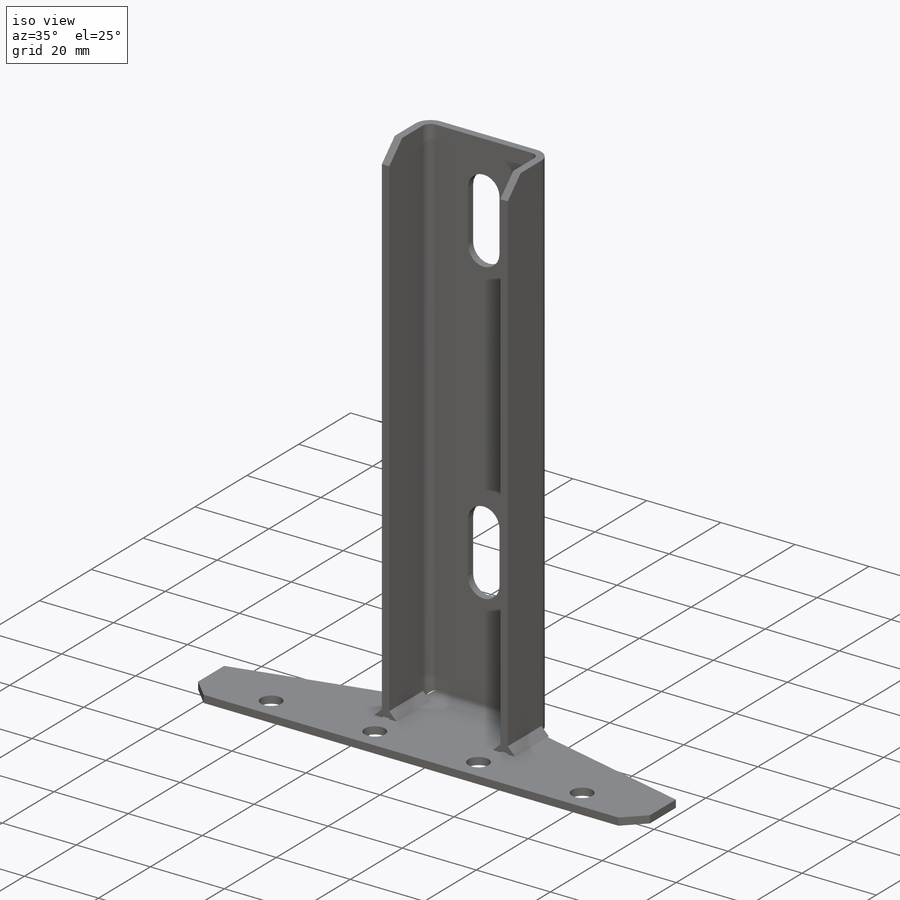
[diagram: iso view]
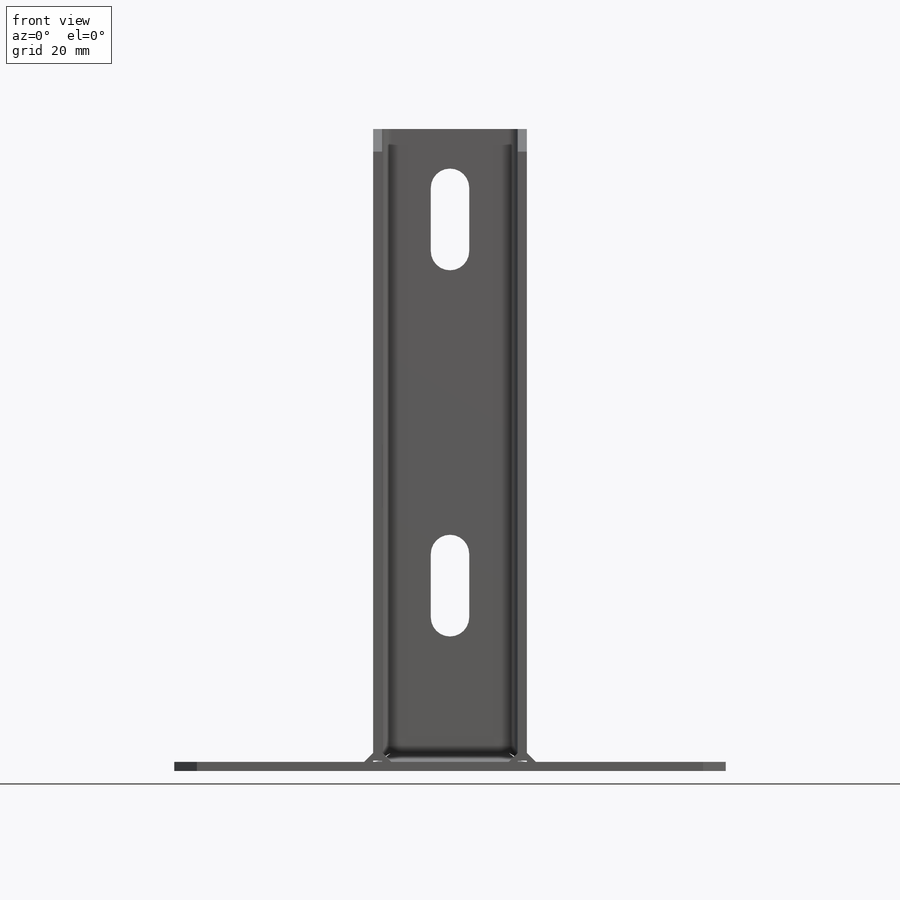
[diagram: front view]
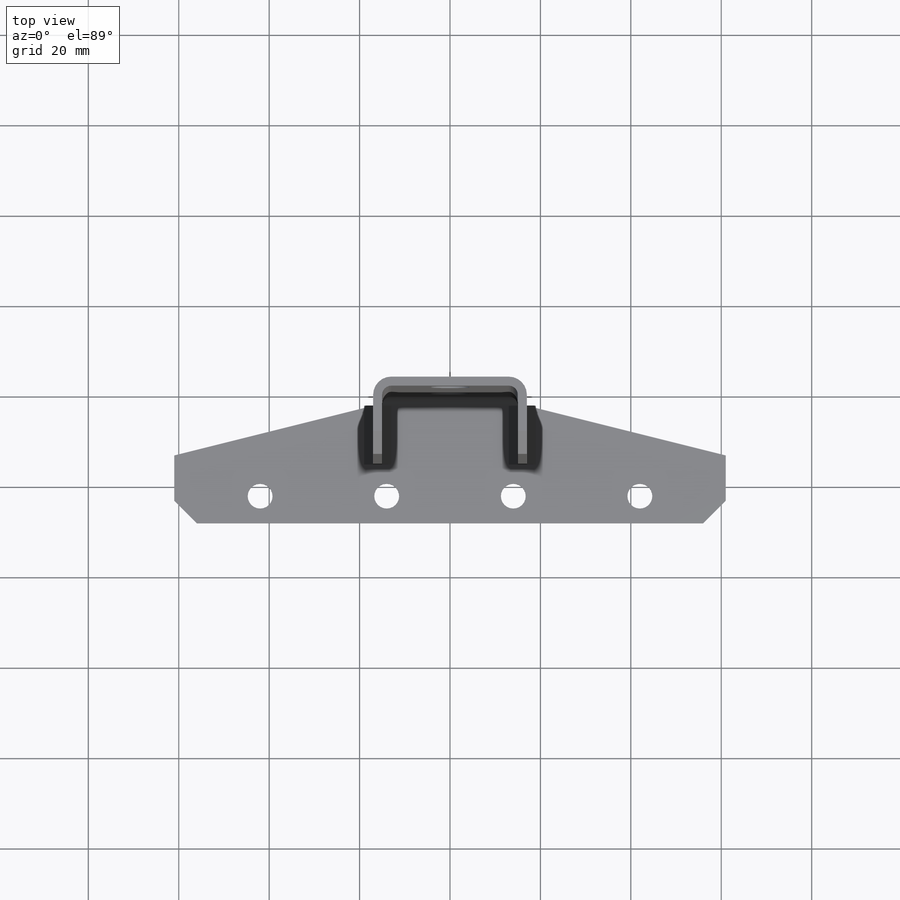
[diagram: top view]
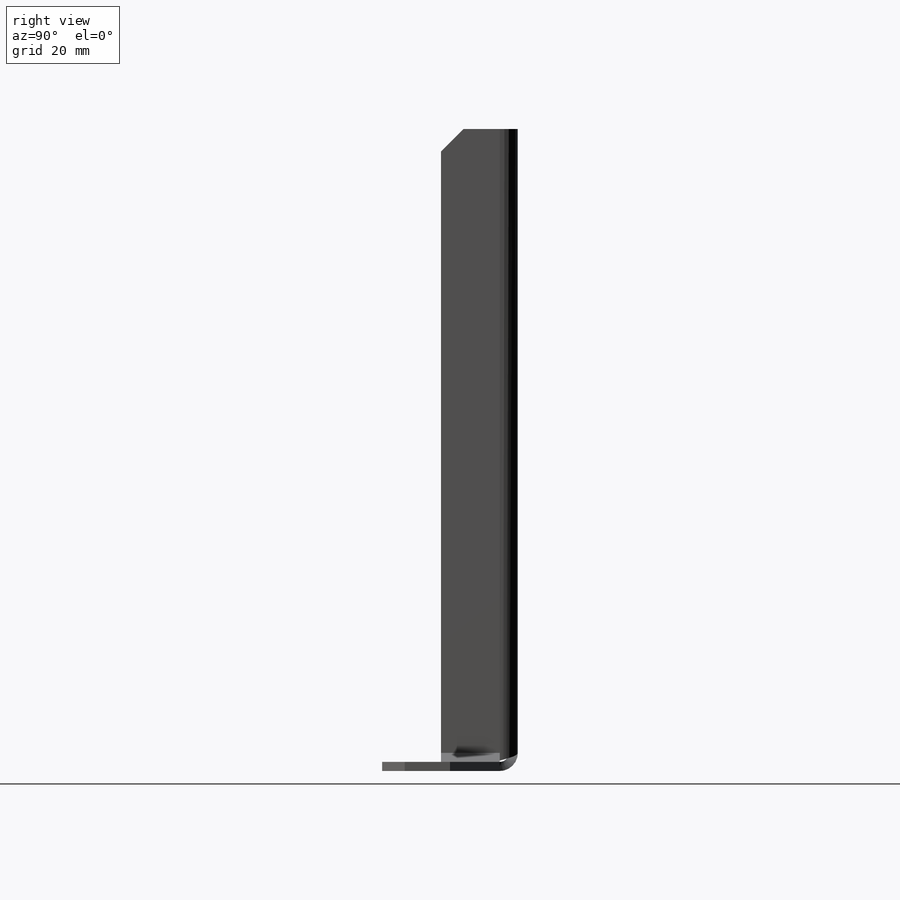
[diagram: right view]
SOLIDWORKS PART (.sldprt)
format: sldprt  version: not decoded by parser v0  size: 320,000 bytes
history: native  units: mm
features: sketch x7, plane x3, sheet_metal_op x3, chamfer x3, extrude x2, cut_extrude x2, material x1 + 6 further entries (+9 scaffold rows collapsed)
feature tree (36):
  scaffold x9  (default folders/planes/origin — collapsed)
  material  "Ст 3 ГОСТ 380-2005"
  plane  "Спереди"
  plane  "Сверху"
  plane  "Слева"
  "Начало координат"
  "PTricksFreeParameters"
  "PTricksEqu"
  "PTricksFreeParameters"
  sketch  "Эскиз1"  dims[c1.D1=~131.199214mm c2.D1=30.0mm c2.D2=15.0mm]
  sheet_metal_op  "Листовой металл1"  Толщина=2mm
  sheet_metal_op  "Базовая кромка1"
  sheet_metal_op  "Основание2"
  sketch  "Эскиз5"  dims[c1.D1=2.0mm c1.D4=90.0deg c1.D5=3.0 c1.D8=1.0mm c1.D9=1.0mm c2.D1=2.0mm c2.D2=500.0mm c2.D3=0.0mm c2.D6=10.0mm c2.D7=30.0mm c3.D1=2000.0mm]
  sketch  "Эскиз6"  dims[D1=15.0mm D2=34.0mm D3=122.0mm]
  extrude  "Вытянуть1"  [1 undecoded]
  sketch  "Эскиз7"  dims[D1=2.0mm]
  extrude  "Св.шов"  [1 undecoded]
  sketch  "Эскиз8"  dims[c1.D1=~8.176349mm c1.D2=~8.176349mm c1.D3=~8.176349mm c1.D4=5.5mm c2.D1=28.0mm c2.D2=28.0mm c2.D3=28.0mm c2.D5=6.0mm]
  cut_extrude  "Вытянуть3"  [1 undecoded]
  chamfer  "Фаска1"  Distance=5mm Angle=45deg
  sketch  "Эскиз9"  dims[D1=41.0mm D2=122.0mm D3=8.5mm D4=14.0mm D5=81.0mm]
  cut_extrude  "Вытянуть4"  [1 undecoded]
  "Развертка1"
  sketch  "Сгиб-Линии1"
  chamfer  "Плоское состояние-<Основание2>1"  [1 undecoded]
  "Преобразование эскиза1"
  chamfer  "Плоское состояние-<EdgeBend1>1"  [1 undecoded]
decode coverage: 8 of 17 modeling features carry decoded parameters; 6 rows unclassified (native names shown)
note: ~ marks probable driven/reference dimensions
note: 6 parameter values undecoded
summary: no parameter record found for 6 features
note: suppression state not decoded; provenance and decode notes live in map.json
